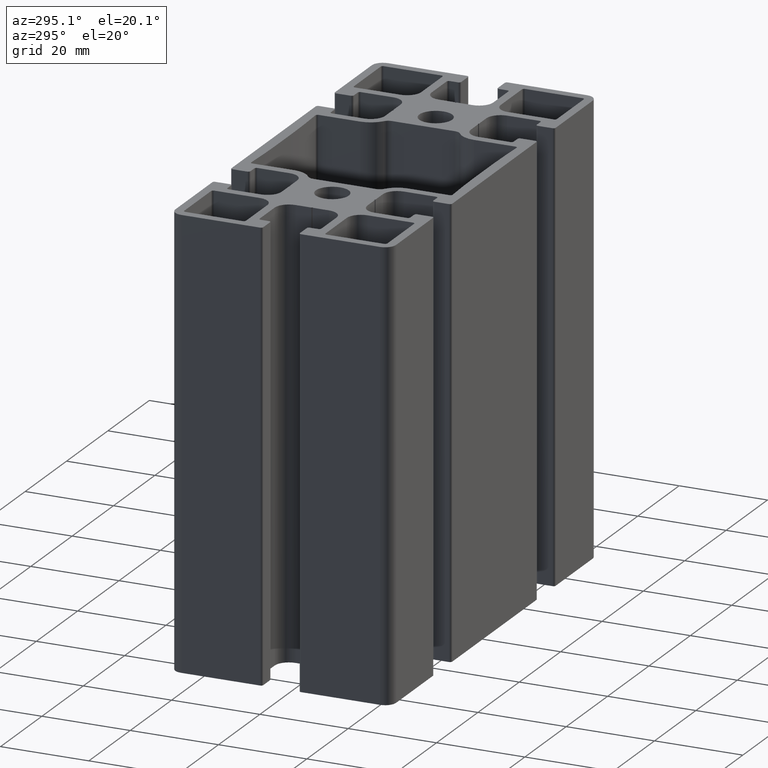
[diagram: clean part render]
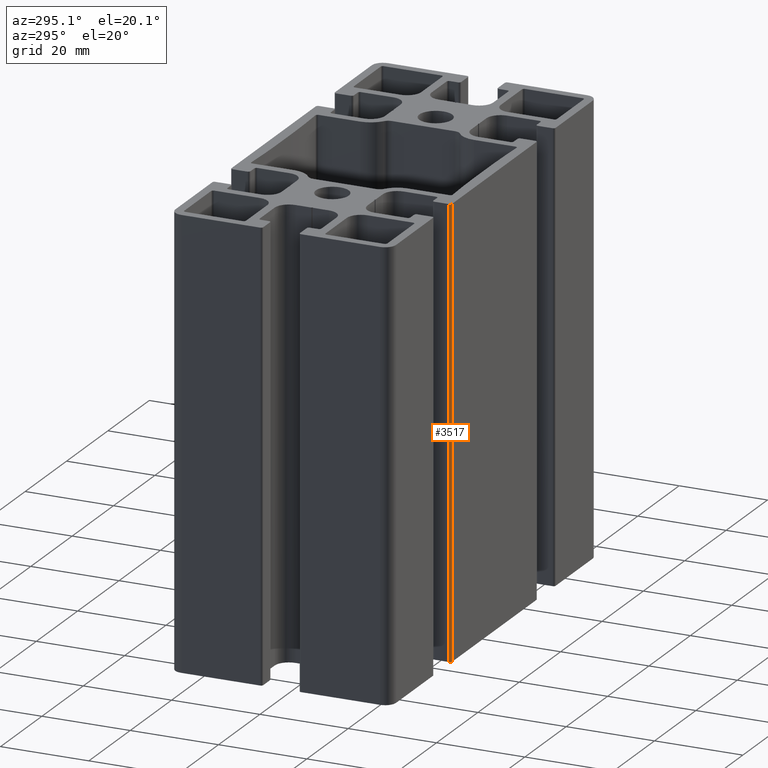
[diagram: same view with one face highlighted and labeled with its STEP entity id]
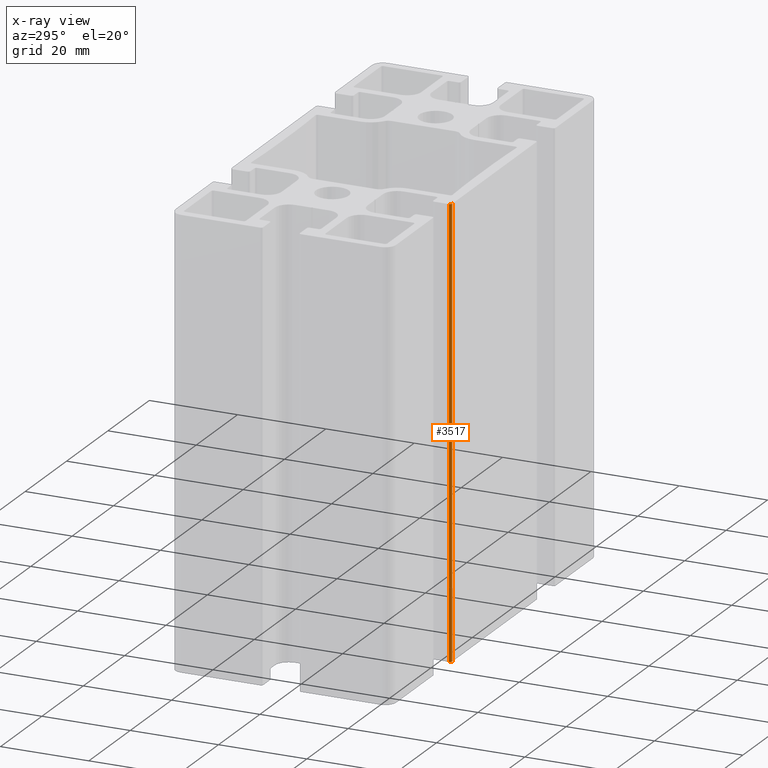
[diagram: x-ray of the same camera — body ghosted, the highlighted face saturated]
A machine part, auxiliary view. The second image highlights one B-rep face of the part: STEP entity #3517.
The next image is the same camera in x-ray: the body ghosted, the highlighted face saturated — about 0% of this face is hidden behind the body in this view.
In plain terms, the highlighted cylindrical surface (edge-blend (fillet) strip) has radius 0.5 mm, axis along (0, 0, 1).
Its self-contained STEP definition (entity closure, byte-faithful):
#125=CIRCLE('',#3794,0.500000000000043);
#126=CIRCLE('',#3795,0.500000000000043);
#250=CYLINDRICAL_SURFACE('',#3793,0.500000000000043);
#375=FACE_OUTER_BOUND('',#557,.T.);
#557=EDGE_LOOP('',(#2613,#2614,#2615,#2616));
#827=LINE('',#5548,#1187);
#828=LINE('',#5554,#1188);
#1187=VECTOR('',#4489,100.);
#1188=VECTOR('',#4496,100.);
#1557=VERTEX_POINT('',#5544);
#1558=VERTEX_POINT('',#5546);
#1559=VERTEX_POINT('',#5550);
#1560=VERTEX_POINT('',#5552);
#1997=EDGE_CURVE('',#1557,#1558,#827,.T.);
#1998=EDGE_CURVE('',#1559,#1557,#125,.T.);
#1999=EDGE_CURVE('',#1560,#1558,#126,.T.);
#2000=EDGE_CURVE('',#1559,#1560,#828,.T.);
#2613=ORIENTED_EDGE('',*,*,#1998,.T.);
#2614=ORIENTED_EDGE('',*,*,#1997,.T.);
#2615=ORIENTED_EDGE('',*,*,#1999,.F.);
#2616=ORIENTED_EDGE('',*,*,#2000,.F.);
#3517=ADVANCED_FACE('',(#375),#250,.T.);
#3793=AXIS2_PLACEMENT_3D('',#5549,#4490,#4491);
#3794=AXIS2_PLACEMENT_3D('',#5551,#4492,#4493);
#3795=AXIS2_PLACEMENT_3D('',#5553,#4494,#4495);
#4489=DIRECTION('',(0.,0.,1.));
#4490=DIRECTION('center_axis',(0.,0.,1.));
#4491=DIRECTION('ref_axis',(-1.,-5.68434188608032E-13,0.));
#4492=DIRECTION('center_axis',(0.,0.,1.));
#4493=DIRECTION('ref_axis',(-1.,-5.68434188608032E-13,0.));
#4494=DIRECTION('center_axis',(0.,0.,1.));
#4495=DIRECTION('ref_axis',(-1.,-5.68434188608032E-13,0.));
#4496=DIRECTION('',(0.,0.,1.));
#5544=CARTESIAN_POINT('',(-20.3499999999984,-25.0000000000009,0.));
#5546=CARTESIAN_POINT('',(-20.3499999999984,-25.0000000000009,100.));
#5548=CARTESIAN_POINT('',(-20.3499999999984,-25.0000000000009,0.));
#5549=CARTESIAN_POINT('Origin',(-20.3499999999983,-24.5000000000009,0.));
#5550=CARTESIAN_POINT('',(-20.8499999999984,-24.5000000000012,0.));
#5551=CARTESIAN_POINT('Origin',(-20.3499999999983,-24.5000000000009,0.));
#5552=CARTESIAN_POINT('',(-20.8499999999984,-24.5000000000012,100.));
#5553=CARTESIAN_POINT('Origin',(-20.3499999999983,-24.5000000000009,100.));
#5554=CARTESIAN_POINT('',(-20.8499999999984,-24.5000000000012,0.));